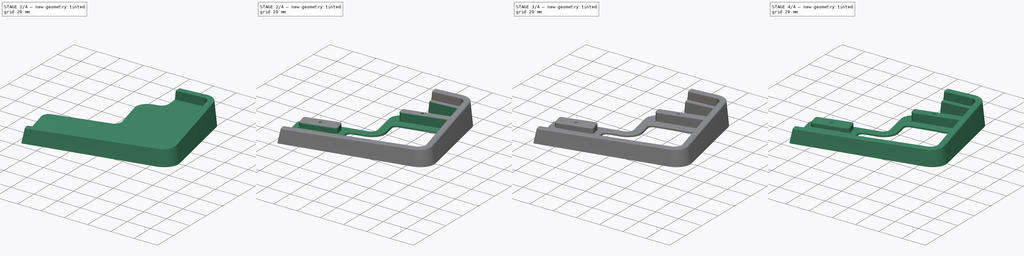
[diagram: build sequence overview — one tinted view per stage of 4, left to right]
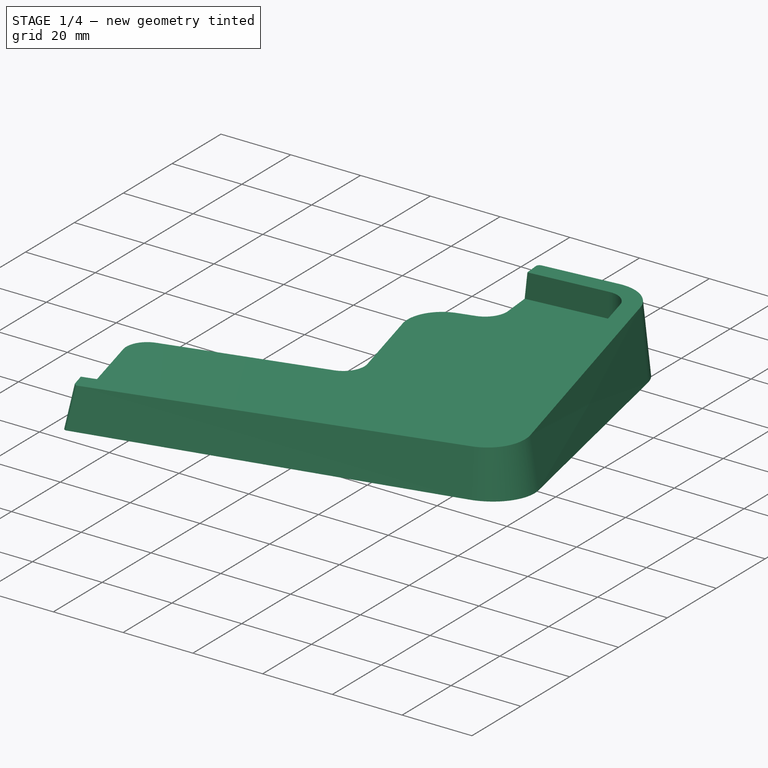
[diagram: stage 1 of 4 — iso view after this stage's code; geometry added in this stage tinted green]
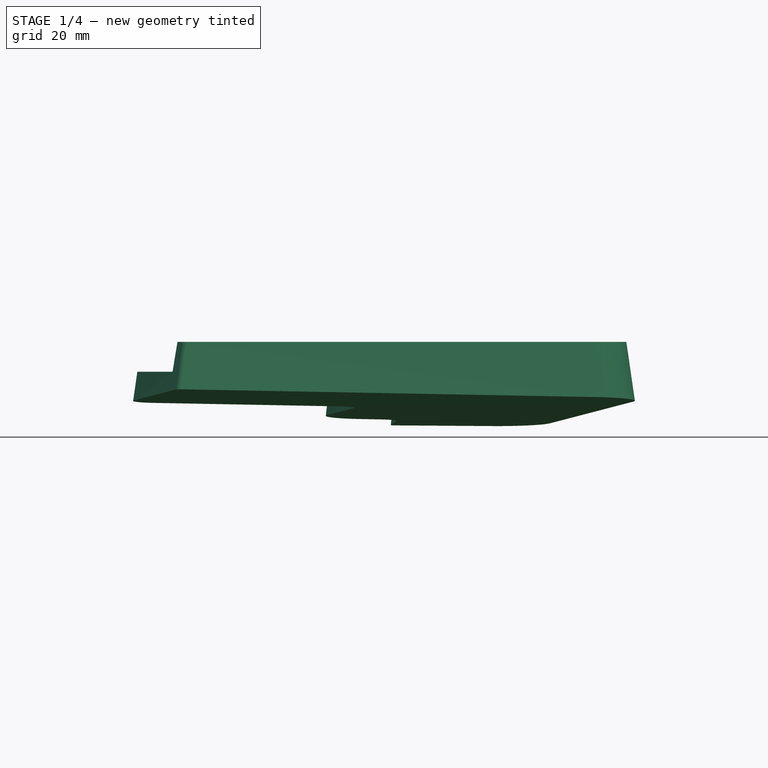
[diagram: stage 1 of 4 — front view after this stage's code; geometry added in this stage tinted green]
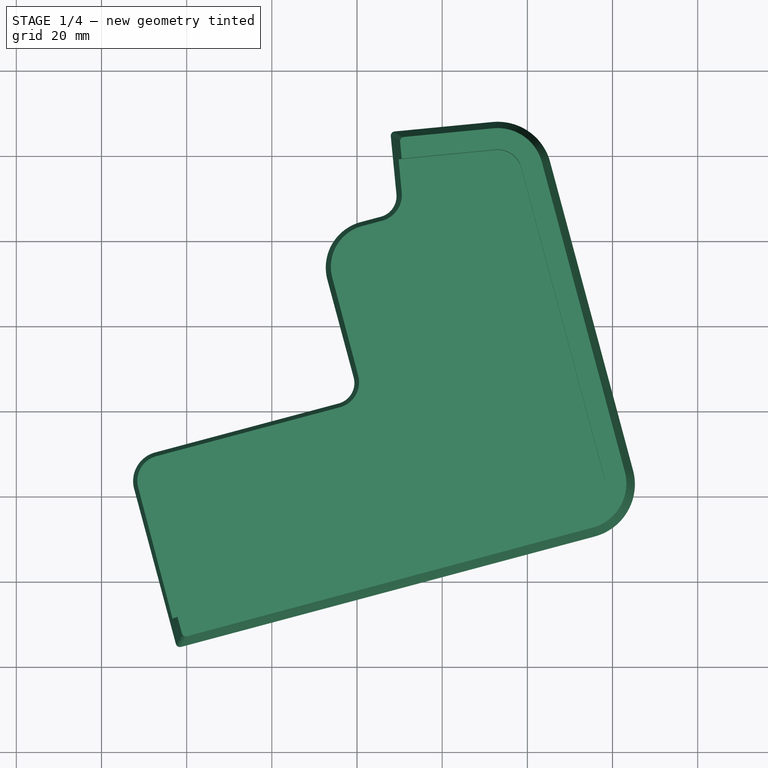
[diagram: stage 1 of 4 — top view after this stage's code; geometry added in this stage tinted green]
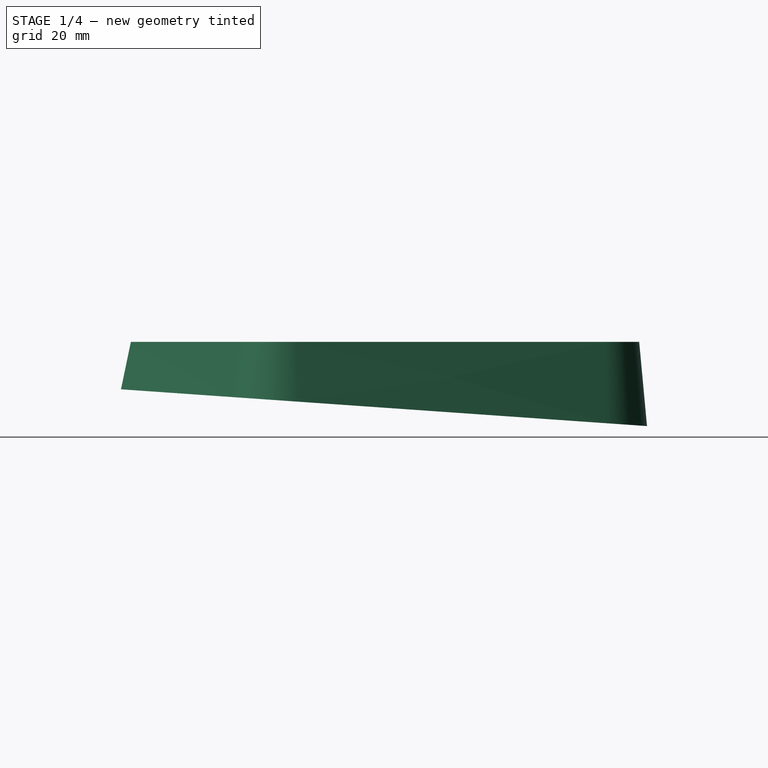
[diagram: stage 1 of 4 — right view after this stage's code; geometry added in this stage tinted green]
FCSTD DOCUMENT  (FreeCAD 0.20R)
Label: case.v4
License: All rights reserved
LicenseURL: http://en.wikipedia.org/wiki/All_rights_reserved
objects: Sketcher::SketchObject×6, PartDesign::Fillet×4, PartDesign::Pocket×3, PartDesign::AdditiveLoft×1, PartDesign::Hole×1, PartDesign::Chamfer×1, PartDesign::Body×1
note: 27 computed .brp shape members not serialized (recipe doc carries the construction recipe); baked Part::Feature solids carry a one-line shape summary decoded from their .brp

FEATURE [Sketcher::SketchObject] Sketch
  AttachmentOffset = pos=(0,0,0) rot=(1,0,0;-0.069813rad)
  FullyConstrained = false
  MapMode = 5
  Placement = pos=(0,0,0) rot=(1,0,0;6.21337rad)
  Support = -> [XY_Plane]
  sketch-geometry (16):
    g0: ArcOfCircle CenterX=113.019 CenterY=55.5108 CenterZ=0 NormalX=0 NormalY=0 NormalZ=1 AngleXU=0 Radius=12.75 StartAngle=0.261799 EndAngle=1.66745
    g1: LineSegment StartX=125.334 StartY=58.8107 StartZ=0 EndX=144.814 EndY=-13.8871 EndZ=0
    g2: ArcOfCircle CenterX=132.498 CenterY=-17.187 CenterZ=0 NormalX=0 NormalY=0 NormalZ=1 AngleXU=0 Radius=12.75 StartAngle=4.97419 EndAngle=6.54498
    g3: ArcOfCircle CenterX=83.7831 CenterY=33.8822 CenterZ=0 NormalX=0 NormalY=0 NormalZ=1 AngleXU=0 Radius=11.1169 StartAngle=1.8326 EndAngle=3.40339
    g4: LineSegment StartX=80.9058 StartY=44.6203 StartZ=0 EndX=85.573 EndY=45.8709 EndZ=0
    g5: ArcOfCircle CenterX=84.2789 CenterY=50.7005 CenterZ=0 NormalX=0 NormalY=0 NormalZ=1 AngleXU=0 Radius=5 StartAngle=4.97419 EndAngle=6.37984
    g6: ArcOfCircle CenterX=34.4268 CenterY=-16.4444 CenterZ=0 NormalX=0 NormalY=0 NormalZ=1 AngleXU=0 Radius=7 StartAngle=1.8326 EndAngle=3.40339
    g7: LineSegment StartX=75.6791 StartY=1.85599 StartZ=0 EndX=32.6151 EndY=-9.68296 EndZ=0
    g8: LineSegment StartX=79.2146 StartY=7.97971 StartZ=0 EndX=73.045 EndY=31.005 EndZ=0
    g9: ArcOfCircle CenterX=74.385 CenterY=6.68562 CenterZ=0 NormalX=0 NormalY=0 NormalZ=1 AngleXU=0 Radius=5 StartAngle=4.97419 EndAngle=6.54498
    g10: LineSegment StartX=88.8262 StartY=65.975 StartZ=0 EndX=111.789 EndY=68.2013 EndZ=0
    g11: LineSegment StartX=89.2556 StartY=51.183 StartZ=0 EndX=87.9273 EndY=64.8832 EndZ=0
    g12: ArcOfCircle CenterX=88.9227 CenterY=64.9797 CenterZ=0 NormalX=0 NormalY=0 NormalZ=1 AngleXU=0 Radius=1 StartAngle=1.66745 EndAngle=3.23824
    g13: LineSegment StartX=135.798 StartY=-29.5026 StartZ=0 EndX=38.6864 EndY=-55.5236 EndZ=0
    g14: LineSegment StartX=27.6653 StartY=-18.2562 StartZ=0 EndX=37.4617 EndY=-54.8165 EndZ=0
    g15: ArcOfCircle CenterX=38.4276 CenterY=-54.5577 CenterZ=0 NormalX=0 NormalY=0 NormalZ=1 AngleXU=0 Radius=1 StartAngle=3.40339 EndAngle=4.97419
  constraints (16):
    c: Coincident(g6,g14)
    c: Coincident(g6,g7)
    c: Coincident(g14,g15)
    c: Coincident(g13,g15)
    c: Coincident(g3,g8)
    c: Coincident(g7,g9)
    c: Coincident(g8,g9)
    c: Coincident(g3,g4)
    c: Coincident(g4,g5)
    c: Coincident(g11,g12)
    c: Coincident(g10,g12)
    c: Coincident(g5,g11)
    c: Coincident(g0,g10)
    c: Coincident(g0,g1)
    c: Coincident(g2,g13)
    c: Coincident(g1,g2)
FEATURE [Sketcher::SketchObject] Sketch001
  AttachmentOffset = pos=(0,0,15) rot=(0,0,1;0rad)
  FullyConstrained = false
  MapMode = 5
  Placement = pos=(0,0,15) rot=(0,0,1;0rad)
  Support = -> [XY_Plane]
  sketch-geometry (16):
    g0: ArcOfCircle CenterX=113.019 CenterY=55.5108 CenterZ=0 NormalX=0 NormalY=0 NormalZ=1 AngleXU=0 Radius=10.75 StartAngle=0.261799 EndAngle=1.66745
    g1: LineSegment StartX=123.403 StartY=58.2931 StartZ=0 EndX=142.882 EndY=-14.4047 EndZ=0
    g2: ArcOfCircle CenterX=132.498 CenterY=-17.187 CenterZ=0 NormalX=0 NormalY=0 NormalZ=1 AngleXU=0 Radius=10.75 StartAngle=4.97419 EndAngle=6.54498
    g3: ArcOfCircle CenterX=34.4268 CenterY=-16.4444 CenterZ=0 NormalX=0 NormalY=0 NormalZ=1 AngleXU=0 Radius=5 StartAngle=1.8326 EndAngle=3.40339
    g4: LineSegment StartX=76.1967 StartY=-0.0758621 StartZ=0 EndX=33.1327 EndY=-11.6148 EndZ=0
    g5: ArcOfCircle CenterX=74.385 CenterY=6.68562 CenterZ=0 NormalX=0 NormalY=0 NormalZ=1 AngleXU=0 Radius=7 StartAngle=4.97419 EndAngle=6.54498
    g6: LineSegment StartX=81.1464 StartY=8.49735 StartZ=0 EndX=74.9768 EndY=31.5226 EndZ=0
    g7: ArcOfCircle CenterX=83.7831 CenterY=33.8822 CenterZ=0 NormalX=0 NormalY=0 NormalZ=1 AngleXU=0 Radius=9.11691 StartAngle=1.8326 EndAngle=3.40339
    g8: LineSegment StartX=81.4235 StartY=42.6885 StartZ=0 EndX=86.0907 EndY=43.9391 EndZ=0
    g9: ArcOfCircle CenterX=84.2789 CenterY=50.7005 CenterZ=0 NormalX=0 NormalY=0 NormalZ=1 AngleXU=0 Radius=7 StartAngle=4.97419 EndAngle=6.37984
    g10: LineSegment StartX=91.0098 StartY=64.1773 StartZ=0 EndX=111.982 EndY=66.2106 EndZ=0
    g11: LineSegment StartX=91.2463 StartY=51.376 StartZ=0 EndX=90.111 EndY=63.0855 EndZ=0
    g12: ArcOfCircle CenterX=91.1063 CenterY=63.182 CenterZ=0 NormalX=0 NormalY=0 NormalZ=1 AngleXU=0 Radius=1 StartAngle=1.66745 EndAngle=3.23824
    g13: LineSegment StartX=135.281 StartY=-27.5707 StartZ=0 EndX=40.1006 EndY=-53.0741 EndZ=0
    g14: LineSegment StartX=29.5972 StartY=-17.7385 StartZ=0 EndX=38.8759 EndY=-52.367 EndZ=0
    g15: ArcOfCircle CenterX=39.8418 CenterY=-52.1082 CenterZ=0 NormalX=0 NormalY=0 NormalZ=1 AngleXU=0 Radius=1 StartAngle=3.40339 EndAngle=4.97419
  constraints (16):
    c: Coincident(g3,g14)
    c: Coincident(g3,g4)
    c: Coincident(g14,g15)
    c: Coincident(g13,g15)
    c: Coincident(g6,g7)
    c: Coincident(g4,g5)
    c: Coincident(g5,g6)
    c: Coincident(g7,g8)
    c: Coincident(g8,g9)
    c: Coincident(g11,g12)
    c: Coincident(g10,g12)
    c: Coincident(g9,g11)
    c: Coincident(g0,g10)
    c: Coincident(g0,g1)
    c: Coincident(g2,g13)
    c: Coincident(g1,g2)
FEATURE [PartDesign::AdditiveLoft] AdditiveLoft
  Closed = true
  Profile = -> Sketch001
  Ruled = true
  Sections = -> [Sketch]
FEATURE [Sketcher::SketchObject] Sketch002
  FullyConstrained = false
  MapMode = 5
  Placement = pos=(0,0,15) rot=(0,0,1;0rad)
  Support = -> [AdditiveLoft]
  sketch-geometry (7):
    g0: ArcOfCircle CenterX=113.019 CenterY=55.5108 CenterZ=0 NormalX=0 NormalY=0 NormalZ=1 AngleXU=0 Radius=5.75 StartAngle=0.261799 EndAngle=1.66745
    g1: LineSegment StartX=118.573 StartY=56.999 StartZ=0 EndX=138.052 EndY=-15.6988 EndZ=0
    g2: ArcOfCircle CenterX=132.498 CenterY=-17.187 CenterZ=0 NormalX=0 NormalY=0 NormalZ=1 AngleXU=0 Radius=5.75 StartAngle=4.97419 EndAngle=6.54498
    g3: LineSegment StartX=20.2968 StartY=-33.5339 StartZ=0 EndX=25.2143 EndY=-51.8865 EndZ=0
    g4: LineSegment StartX=133.986 StartY=-22.7411 StartZ=0 EndX=25.2143 EndY=-51.8865 EndZ=0
    g5: LineSegment StartX=20.2968 StartY=-33.5339 StartZ=0 EndX=20.2968 EndY=52.2981 EndZ=0
    g6: LineSegment StartX=20.2968 StartY=52.2981 StartZ=0 EndX=112.464 EndY=61.2339 EndZ=0
  constraints (7):
    c: Coincident(g3,g5)
    c: Coincident(g5,g6)
    c: Coincident(g3,g4)
    c: Coincident(g0,g6)
    c: Coincident(g0,g1)
    c: Coincident(g2,g4)
    c: Coincident(g1,g2)
FEATURE [PartDesign::Pocket] Pocket
  BaseFeature = -> AdditiveLoft
  Direction = (0,0,-1)
  Length = 7
  Length2 = 5
  Profile = -> Sketch002
  ReferenceAxis = -> Sketch002 [N_Axis]
  Type = 0
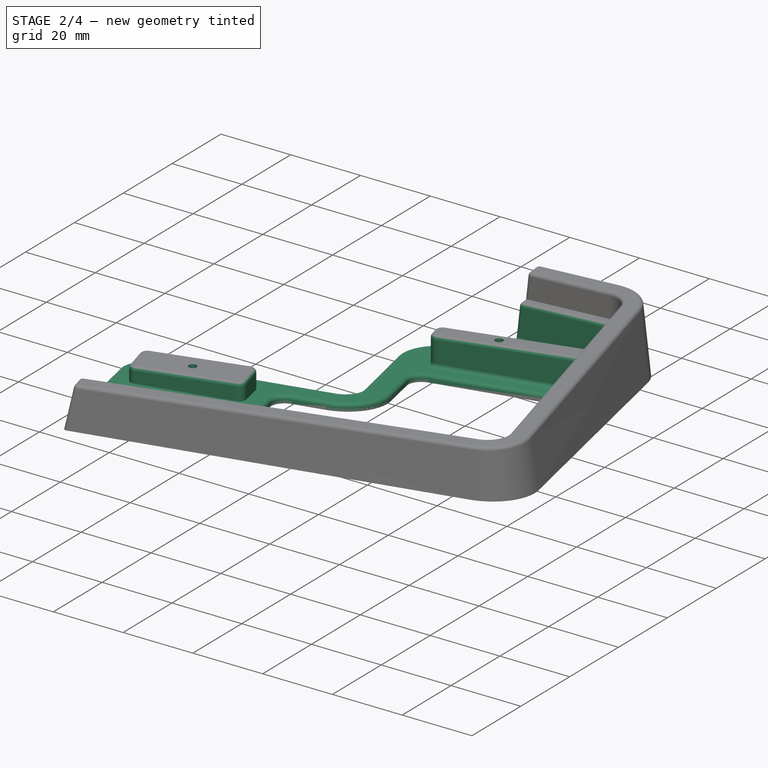
[diagram: stage 2 of 4 — iso view after this stage's code; geometry added in this stage tinted green]
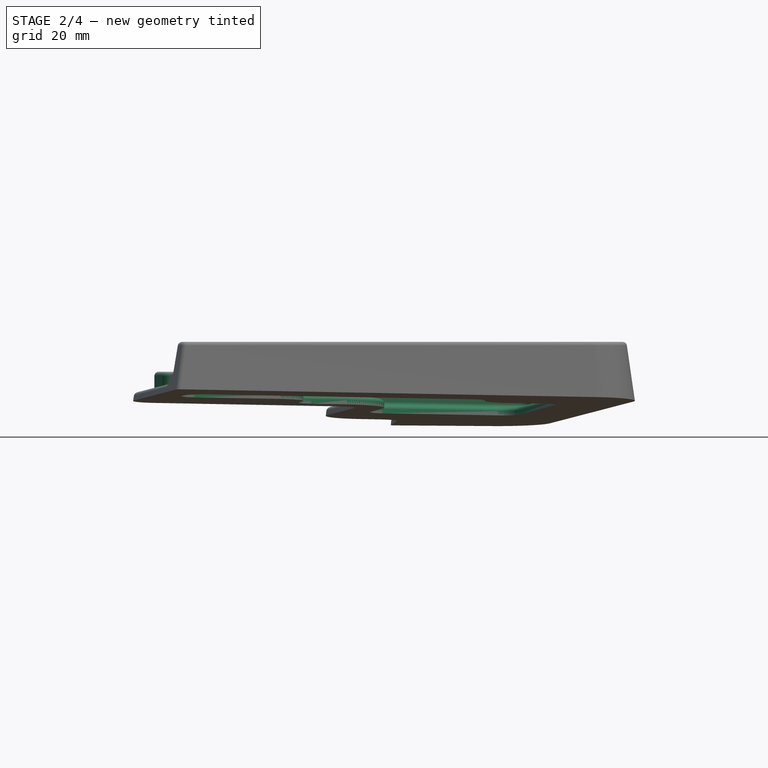
[diagram: stage 2 of 4 — front view after this stage's code; geometry added in this stage tinted green]
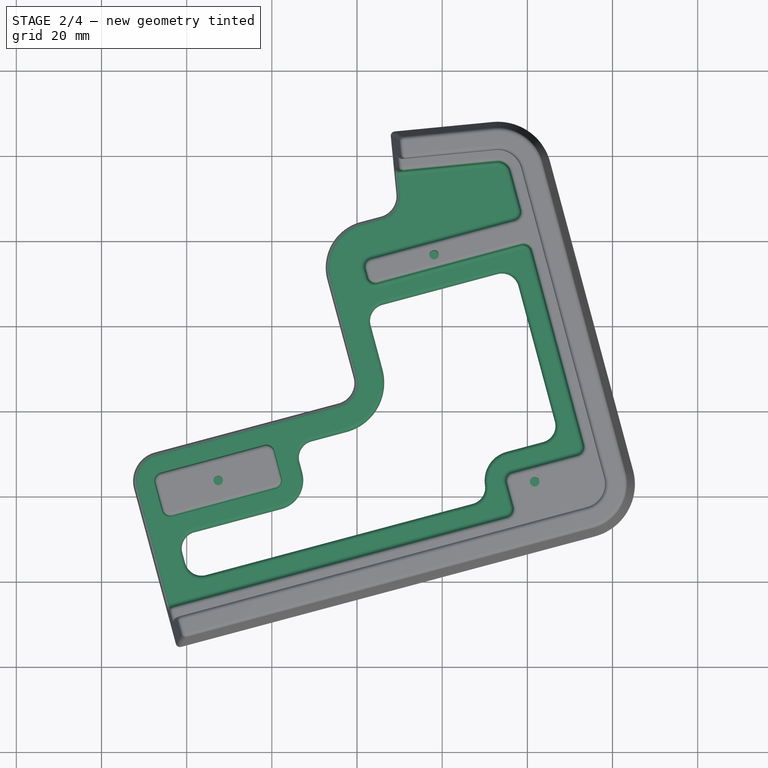
[diagram: stage 2 of 4 — top view after this stage's code; geometry added in this stage tinted green]
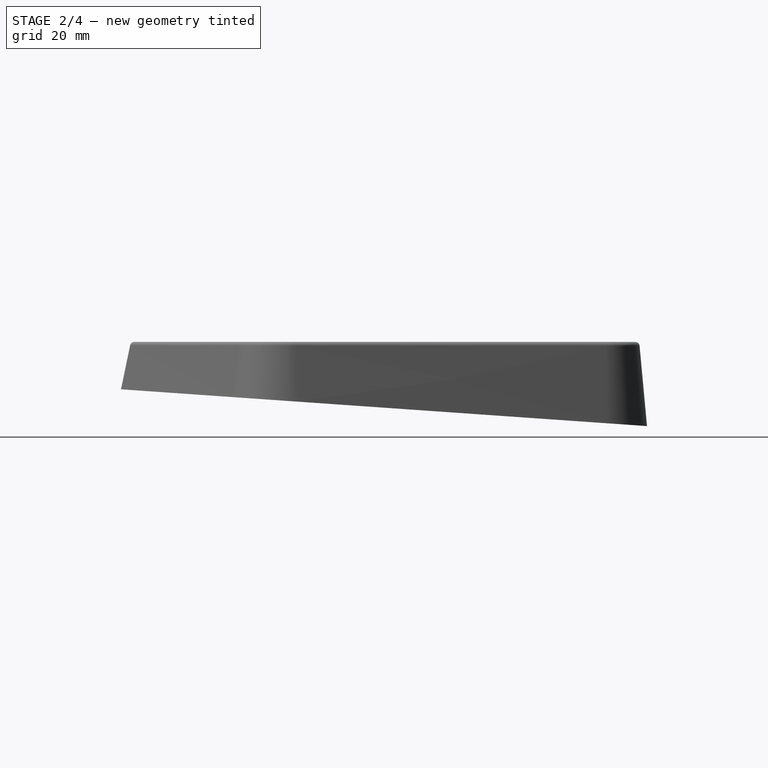
[diagram: stage 2 of 4 — right view after this stage's code; geometry added in this stage tinted green]
FEATURE [Sketcher::SketchObject] Sketch003
  FullyConstrained = false
  MapMode = 5
  Placement = pos=(0,0,8) rot=(0,0,1;0rad)
  Support = -> [Pocket]
  sketch-geometry (30):
    g0: Circle CenterX=121.71 CenterY=-16.6741 CenterZ=0 NormalX=0 NormalY=0 NormalZ=-1 AngleXU=0 Radius=1.1
    g1: Circle CenterX=47.4001 CenterY=-16.3717 CenterZ=0 NormalX=0 NormalY=0 NormalZ=-1 AngleXU=0 Radius=1.1
    g2: Circle CenterX=98.1026 CenterY=36.658 CenterZ=0 NormalX=0 NormalY=0 NormalZ=-1 AngleXU=0 Radius=1.1
    g3: ArcOfCircle CenterX=113.019 CenterY=55.5108 CenterZ=0 NormalX=0 NormalY=0 NormalZ=1 AngleXU=0 Radius=3 StartAngle=0.261799 EndAngle=1.66745
    g4: LineSegment StartX=115.127 StartY=-24.9473 StartZ=0 EndX=24.5026 EndY=-49.2302 EndZ=0
    g5: ArcOfCircle CenterX=114.61 CenterY=-23.0155 CenterZ=0 NormalX=0 NormalY=0 NormalZ=1 AngleXU=0 Radius=2 StartAngle=4.97419 EndAngle=6.54498
    g6: ArcOfCircle CenterX=58.6716 CenterY=-9.94809 CenterZ=0 NormalX=0 NormalY=0 NormalZ=1 AngleXU=0 Radius=2 StartAngle=0.261799 EndAngle=1.8326
    g7: LineSegment StartX=62.3052 StartY=-15.7814 StartZ=0 EndX=60.6034 EndY=-9.43045 EndZ=0
    g8: ArcOfCircle CenterX=60.3733 CenterY=-16.299 CenterZ=0 NormalX=0 NormalY=0 NormalZ=1 AngleXU=0 Radius=2 StartAngle=4.97419 EndAngle=6.54498
    g9: LineSegment StartX=60.8909 StartY=-18.2309 StartZ=0 EndX=36.6462 EndY=-24.7273 EndZ=0
    g10: ArcOfCircle CenterX=36.1286 CenterY=-22.7954 CenterZ=0 NormalX=0 NormalY=0 NormalZ=1 AngleXU=0 Radius=2 StartAngle=3.40339 EndAngle=4.97419
    g11: LineSegment StartX=32.495 StartY=-16.9621 StartZ=0 EndX=34.1967 EndY=-23.313 EndZ=0
    g12: LineSegment StartX=58.1539 StartY=-8.01623 StartZ=0 EndX=33.9092 EndY=-14.5126 EndZ=0
    g13: ArcOfCircle CenterX=34.4268 CenterY=-16.4444 CenterZ=0 NormalX=0 NormalY=0 NormalZ=1 AngleXU=0 Radius=2 StartAngle=1.8326 EndAngle=3.40339
    g14: ArcOfCircle CenterX=83.7831 CenterY=33.8822 CenterZ=0 NormalX=0 NormalY=0 NormalZ=1 AngleXU=0 Radius=2 StartAngle=1.8326 EndAngle=3.40339
    g15: LineSegment StartX=82.3818 StartY=31.3845 StartZ=0 EndX=81.8512 EndY=33.3646 EndZ=0
    g16: ArcOfCircle CenterX=84.3137 CenterY=31.9021 CenterZ=0 NormalX=0 NormalY=0 NormalZ=1 AngleXU=0 Radius=2 StartAngle=3.40339 EndAngle=4.97419
    g17: ArcOfCircle CenterX=131.19 CenterY=-8.44011 CenterZ=0 NormalX=0 NormalY=0 NormalZ=1 AngleXU=0 Radius=2 StartAngle=4.97419 EndAngle=6.54498
    g18: LineSegment StartX=116.542 StartY=-22.4979 StartZ=0 EndX=115.044 EndY=-16.9076 EndZ=0
    g19: LineSegment StartX=116.458 StartY=-14.4581 StartZ=0 EndX=131.707 EndY=-10.372 EndZ=0
    g20: ArcOfCircle CenterX=116.975 CenterY=-16.3899 CenterZ=0 NormalX=0 NormalY=0 NormalZ=1 AngleXU=0 Radius=2 StartAngle=1.8326 EndAngle=3.40339
    g21: LineSegment StartX=83.2655 StartY=35.8141 StartZ=0 EndX=116.916 EndY=44.8307 EndZ=0
    g22: LineSegment StartX=115.917 StartY=56.2872 StartZ=0 EndX=118.33 EndY=47.2802 EndZ=0
    g23: ArcOfCircle CenterX=116.398 CenterY=46.7626 CenterZ=0 NormalX=0 NormalY=0 NormalZ=1 AngleXU=0 Radius=2 StartAngle=4.97419 EndAngle=6.54498
    g24: LineSegment StartX=118.482 StartY=38.9868 StartZ=0 EndX=84.8313 EndY=29.9702 EndZ=0
    g25: LineSegment StartX=120.931 StartY=37.5726 StartZ=0 EndX=133.122 EndY=-7.92247 EndZ=0
    g26: ArcOfCircle CenterX=118.999 CenterY=37.055 CenterZ=0 NormalX=0 NormalY=0 NormalZ=1 AngleXU=0 Radius=2 StartAngle=0.261799 EndAngle=1.8326
    g27: LineSegment StartX=24.5026 StartY=-49.2302 StartZ=0 EndX=20.2968 EndY=-33.5339 EndZ=0
    g28: LineSegment StartX=20.2968 StartY=-33.5339 StartZ=0 EndX=20.2968 EndY=49.5352 EndZ=0
    g29: LineSegment StartX=20.2968 StartY=49.5352 StartZ=0 EndX=112.729 EndY=58.4968 EndZ=0
  constraints (27):
    c: Coincident(g27,g28)
    c: Coincident(g28,g29)
    c: Coincident(g4,g27)
    c: Coincident(g11,g13)
    c: Coincident(g12,g13)
    c: Coincident(g10,g11)
    c: Coincident(g9,g10)
    c: Coincident(g6,g12)
    c: Coincident(g6,g7)
    c: Coincident(g8,g9)
    c: Coincident(g7,g8)
    c: Coincident(g14,g15)
    c: Coincident(g15,g16)
    c: Coincident(g14,g21)
    c: Coincident(g16,g24)
    c: Coincident(g3,g29)
    c: Coincident(g18,g20)
    c: Coincident(g4,g5)
    c: Coincident(g3,g22)
    c: Coincident(g19,g20)
    c: Coincident(g5,g18)
    c: Coincident(g21,g23)
    c: Coincident(g22,g23)
    c: Coincident(g24,g26)
    c: Coincident(g25,g26)
    c: Coincident(g17,g19)
    c: Coincident(g17,g25)
FEATURE [PartDesign::Pocket] Pocket001
  BaseFeature = -> Pocket
  Direction = (0,0,-1)
  Length = 0
  Length2 = 5
  Offset = -2
  Profile = -> Sketch003
  ReferenceAxis = -> Sketch003 [N_Axis]
  Type = 3
  UpToFace = -> Pocket [Face16]
FEATURE [Sketcher::SketchObject] Sketch004
  FullyConstrained = false
  MapMode = 5
  Placement = pos=(0,0.139173,1.99027) rot=(-1,0,0;0.069813rad)
  Support = -> [Pocket001]
  sketch-geometry (19):
    g0: ArcOfCircle CenterX=60.3733 CenterY=-16.299 CenterZ=0 NormalX=0 NormalY=0 NormalZ=1 AngleXU=0 Radius=7 StartAngle=4.97419 EndAngle=6.54498
    g1: ArcOfCircle CenterX=74.385 CenterY=6.68562 CenterZ=0 NormalX=0 NormalY=0 NormalZ=1 AngleXU=0 Radius=12 StartAngle=4.97419 EndAngle=6.54498
    g2: ArcOfCircle CenterX=116.975 CenterY=-16.3899 CenterZ=0 NormalX=0 NormalY=0 NormalZ=1 AngleXU=0 Radius=7 StartAngle=1.8326 EndAngle=3.29294
    g3: ArcOfCircle CenterX=106.101 CenterY=-18.0484 CenterZ=0 NormalX=0 NormalY=0 NormalZ=1 AngleXU=0 Radius=4 StartAngle=4.97419 EndAngle=6.43453
    g4: LineSegment StartX=115.164 StartY=-9.62844 StartZ=0 EndX=123.652 EndY=-7.35407 EndZ=0
    g5: ArcOfCircle CenterX=122.617 CenterY=-3.49036 CenterZ=0 NormalX=0 NormalY=0 NormalZ=1 AngleXU=0 Radius=4 StartAngle=4.97419 EndAngle=6.54498
    g6: LineSegment StartX=117.913 StartY=29.5171 StartZ=0 EndX=126.48 EndY=-2.45509 EndZ=0
    g7: ArcOfCircle CenterX=114.05 CenterY=28.4818 CenterZ=0 NormalX=0 NormalY=0 NormalZ=1 AngleXU=0 Radius=4 StartAngle=0.261799 EndAngle=1.8326
    g8: LineSegment StartX=113.014 StartY=32.3455 StartZ=0 EndX=86.0125 EndY=25.1104 EndZ=0
    g9: LineSegment StartX=85.9761 StartY=9.79145 StartZ=0 EndX=83.1841 EndY=20.2114 EndZ=0
    g10: ArcOfCircle CenterX=87.0478 CenterY=21.2466 CenterZ=0 NormalX=0 NormalY=0 NormalZ=1 AngleXU=0 Radius=4 StartAngle=1.8326 EndAngle=3.40339
    g11: LineSegment StartX=67.1348 StartY=-14.4873 StartZ=0 EndX=66.4683 EndY=-12.0001 EndZ=0
    g12: LineSegment StartX=77.4908 StartY=-4.90549 StartZ=0 EndX=69.2968 EndY=-7.10108 EndZ=0
    g13: ArcOfCircle CenterX=70.332 CenterY=-10.9648 CenterZ=0 NormalX=0 NormalY=0 NormalZ=1 AngleXU=0 Radius=4 StartAngle=1.8326 EndAngle=3.40339
    g14: LineSegment StartX=62.185 StartY=-23.0605 StartZ=0 EndX=41.804 EndY=-28.5216 EndZ=0
    g15: ArcOfCircle CenterX=42.8393 CenterY=-32.3853 CenterZ=0 NormalX=0 NormalY=0 NormalZ=1 AngleXU=0 Radius=4 StartAngle=1.8326 EndAngle=3.40339
    g16: LineSegment StartX=107.137 StartY=-21.9121 StartZ=0 EndX=44.5281 EndY=-38.688 EndZ=0
    g17: LineSegment StartX=38.9756 StartY=-33.4206 StartZ=0 EndX=39.6291 EndY=-35.8596 EndZ=0
    g18: ArcOfCircle CenterX=43.4928 CenterY=-34.8243 CenterZ=0 NormalX=0 NormalY=0 NormalZ=1 AngleXU=0 Radius=4 StartAngle=3.40339 EndAngle=4.97419
  constraints (19):
    c: Coincident(g15,g17)
    c: Coincident(g17,g18)
    c: Coincident(g14,g15)
    c: Coincident(g16,g18)
    c: Coincident(g0,g14)
    c: Coincident(g11,g13)
    c: Coincident(g0,g11)
    c: Coincident(g12,g13)
    c: Coincident(g1,g12)
    c: Coincident(g9,g10)
    c: Coincident(g1,g9)
    c: Coincident(g8,g10)
    c: Coincident(g3,g16)
    c: Coincident(g2,g3)
    c: Coincident(g7,g8)
    c: Coincident(g2,g4)
    c: Coincident(g6,g7)
    c: Coincident(g4,g5)
    c: Coincident(g5,g6)
FEATURE [PartDesign::Pocket] Pocket002
  BaseFeature = -> Pocket001
  Direction = (0,-0.0697565,-0.997564)
  Length = 5
  Length2 = 5
  Profile = -> Sketch004
  ReferenceAxis = -> Sketch004 [N_Axis]
  Type = 1
FEATURE [PartDesign::Fillet] Fillet
  Base = -> Pocket002 [Edge83,Edge41,Edge35,Edge40,Edge39,Edge9,Edge8,Edge20,Edge21,Edge22,Edge125,Edge96,Edge197]
  BaseFeature = -> Pocket002
  Radius = 1
  SupportTransform = false
  UseAllEdges = false
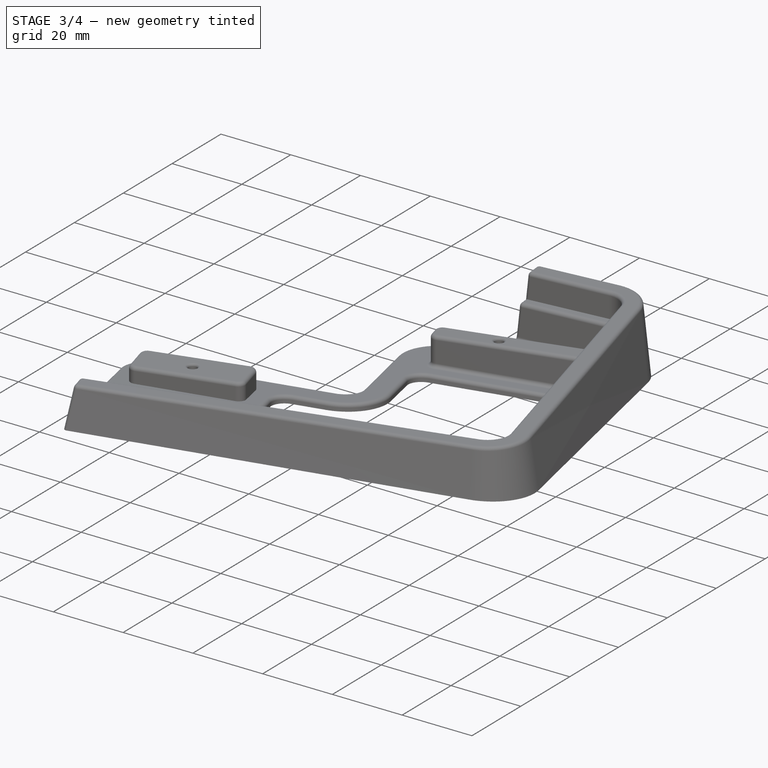
[diagram: stage 3 of 4 — iso view after this stage's code; geometry added in this stage tinted green]
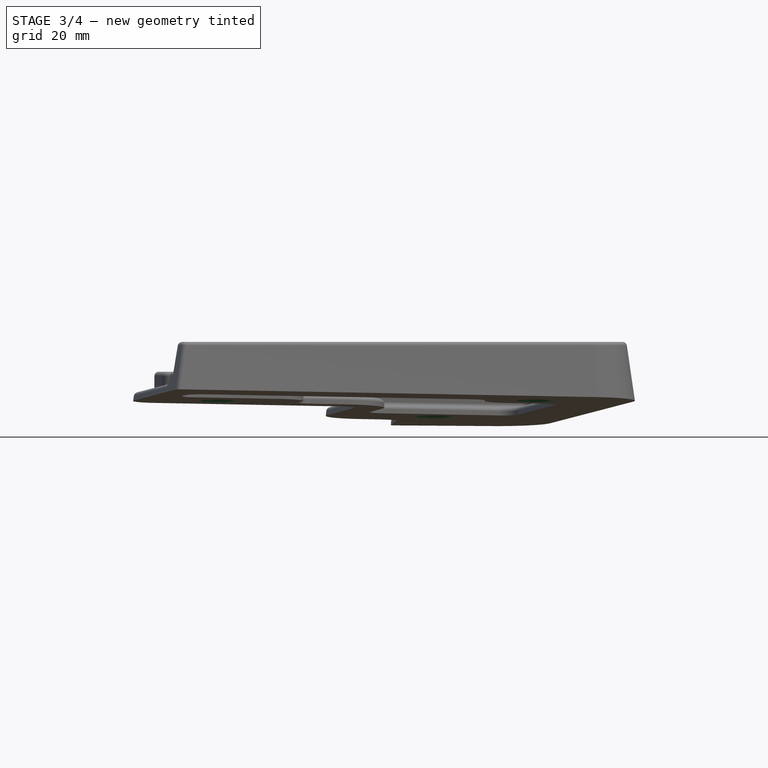
[diagram: stage 3 of 4 — front view after this stage's code; geometry added in this stage tinted green]
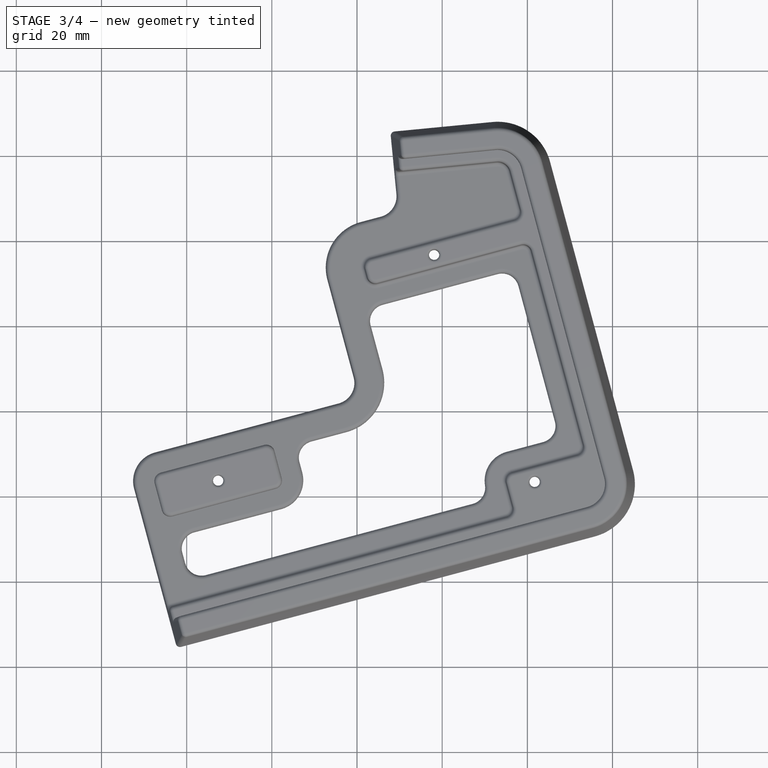
[diagram: stage 3 of 4 — top view after this stage's code; geometry added in this stage tinted green]
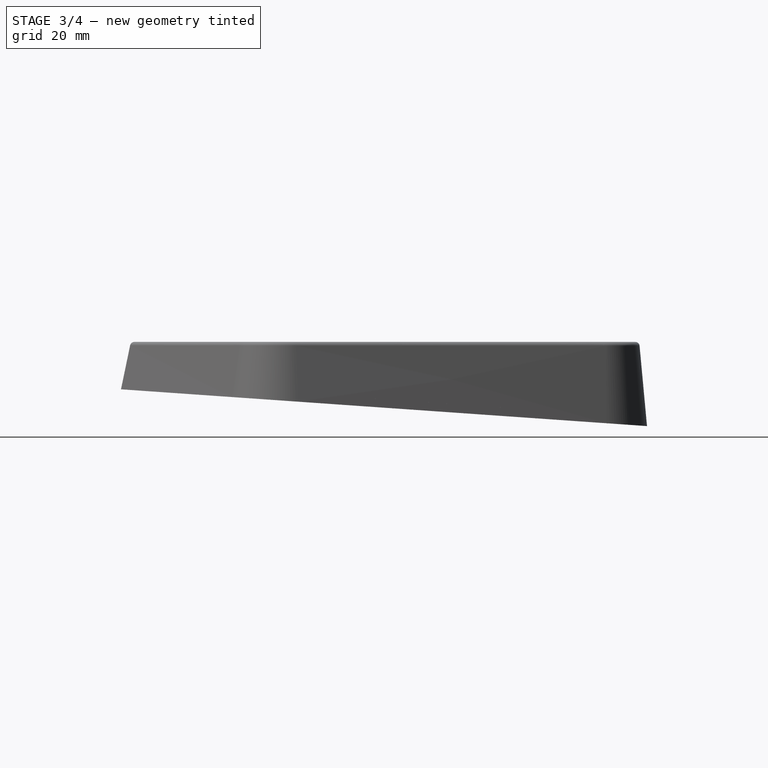
[diagram: stage 3 of 4 — right view after this stage's code; geometry added in this stage tinted green]
FEATURE [Sketcher::SketchObject] Sketch005
  ExternalGeometry = -> [Sketch003]
  FullyConstrained = true
  MapMode = 5
  Placement = pos=(0,0,8) rot=(0,0,1;0rad)
  Support = -> [Pocket]
  sketch-geometry (3):
    g0: Circle CenterX=98.1026 CenterY=36.658 CenterZ=0 NormalX=0 NormalY=0 NormalZ=1 AngleXU=0 Radius=1
    g1: Circle CenterX=121.71 CenterY=-16.6741 CenterZ=0 NormalX=0 NormalY=0 NormalZ=1 AngleXU=0 Radius=1
    g2: Circle CenterX=47.4001 CenterY=-16.3717 CenterZ=0 NormalX=0 NormalY=0 NormalZ=1 AngleXU=0 Radius=1
  constraints (6):
    c: Coincident(g0,g-3)
    c: Coincident(g1,g-4)
    c: Coincident(g2,g-5)
    c: Equal(g0,g1)
    c: Equal(g1,g2)
    c: Diameter(g0) = 2
FEATURE [PartDesign::Hole] Hole
  BaseFeature = -> Fillet
  CustomThreadClearance = 0
  Depth = 25
  DepthType = 0
  Diameter = 2.42
  DrillForDepth = false
  DrillPoint = 1
  DrillPointAngle = 118
  HoleCutCountersinkAngle = 90
  HoleCutCustomValues = false
  HoleCutDepth = 0
  HoleCutDiameter = 6.1
  HoleCutType = 0
  ModelThread = false
  Profile = -> Sketch005
  Tapered = false
  TaperedAngle = 90
  ThreadClass = 0
  ThreadDepth = 25
  ThreadDepthType = 0
  ThreadDirection = 0
  ThreadFit = 0
  ThreadSize = 7
  ThreadType = 1
  Threaded = false
  UseCustomThreadClearance = false
FEATURE [PartDesign::Fillet] Fillet001
  Base = -> Hole [Edge150,Edge151,Edge213]
  BaseFeature = -> Hole
  Radius = 0.65
  SupportTransform = false
  UseAllEdges = false
FEATURE [PartDesign::Chamfer] Chamfer
  Angle = 45
  Base = -> Fillet001 [Edge160,Edge194,Edge90]
  BaseFeature = -> Fillet001
  ChamferType = 0
  FlipDirection = false
  Size = 3
  Size2 = 1
  SupportTransform = false
  UseAllEdges = false
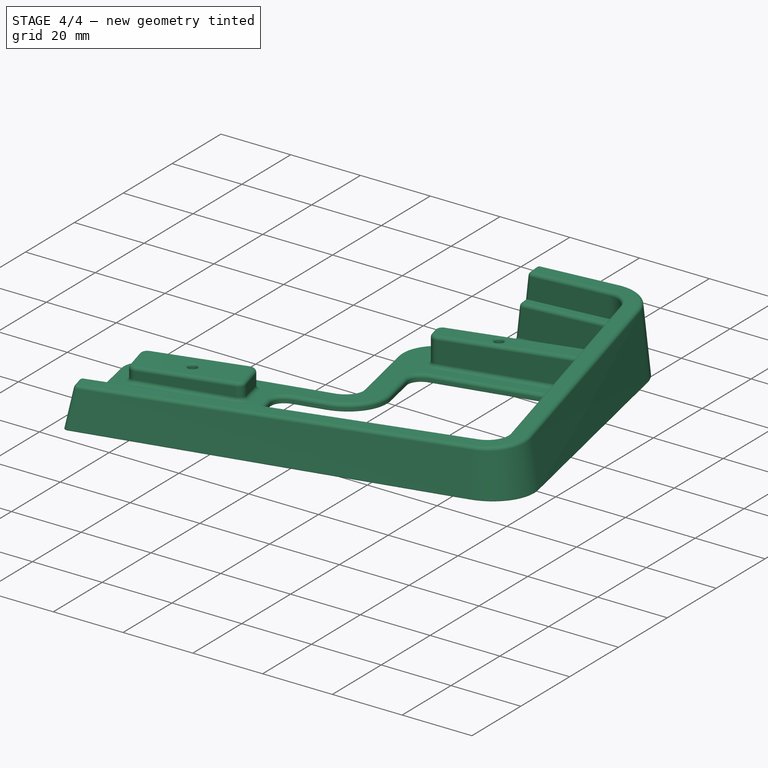
[diagram: stage 4 of 4 — iso view after this stage's code; geometry added in this stage tinted green]
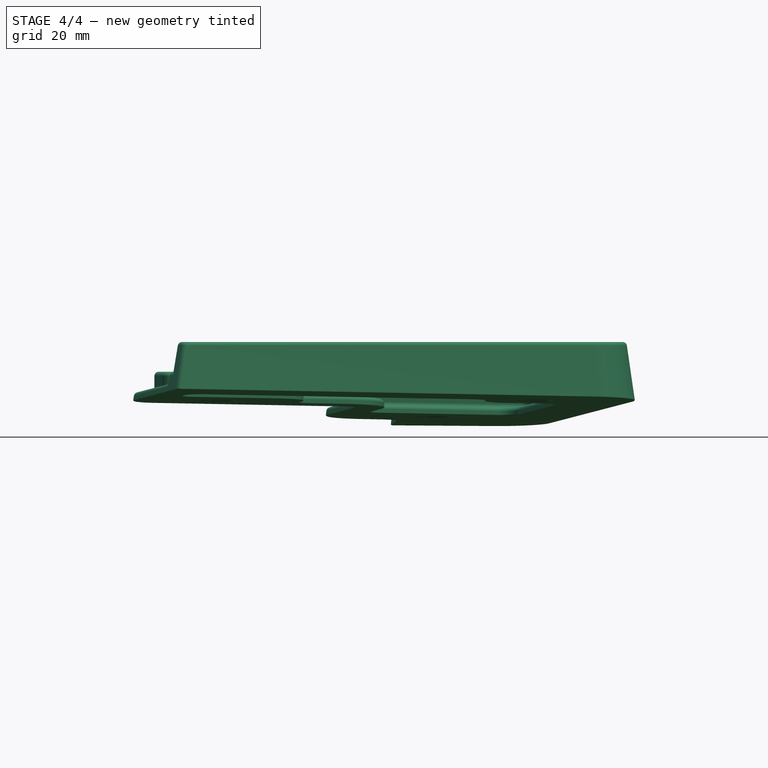
[diagram: stage 4 of 4 — front view after this stage's code; geometry added in this stage tinted green]
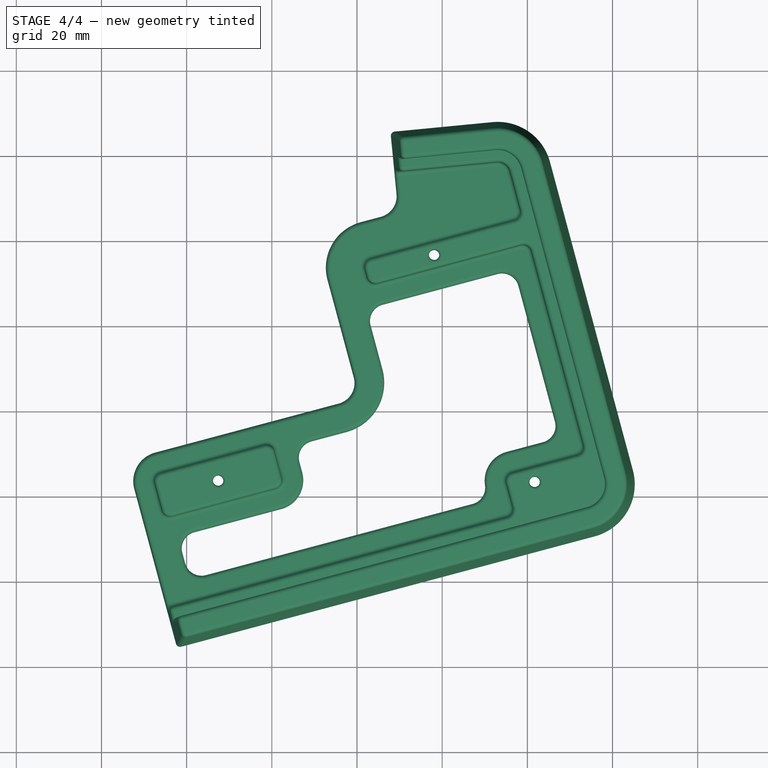
[diagram: stage 4 of 4 — top view after this stage's code; geometry added in this stage tinted green]
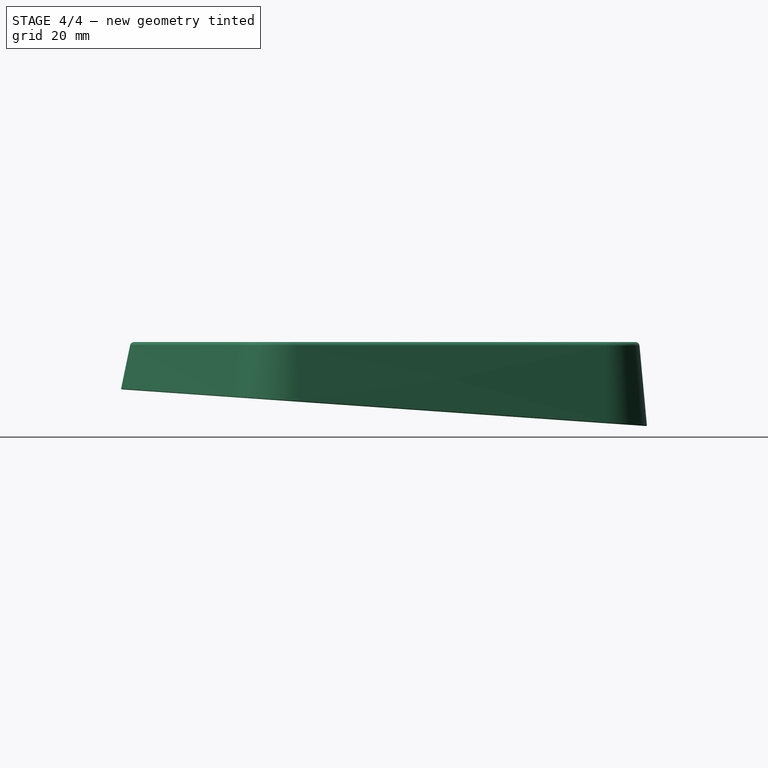
[diagram: stage 4 of 4 — right view after this stage's code; geometry added in this stage tinted green]
FEATURE [PartDesign::Fillet] Fillet002
  Base = -> Chamfer [Face4]
  BaseFeature = -> Chamfer
  Radius = 0.2
  SupportTransform = false
  UseAllEdges = false
FEATURE [PartDesign::Fillet] Fillet003
  Base = -> Fillet002 [Edge440]
  BaseFeature = -> Fillet002
  Radius = 1
  SupportTransform = false
  UseAllEdges = false
FEATURE [PartDesign::Body] Body
  Group = -> [Sketch,Sketch001,AdditiveLoft,Sketch002,Pocket,Sketch003,Pocket001,Sketch004,Pocket002,Fillet,Sketch005,Hole,Fillet001,Chamfer,Fillet002,Fillet003]
  Origin = -> Origin
  Placement = pos=(0,0,0) rot=(1,0,0;0.069813rad)
  Tip = -> Fillet003
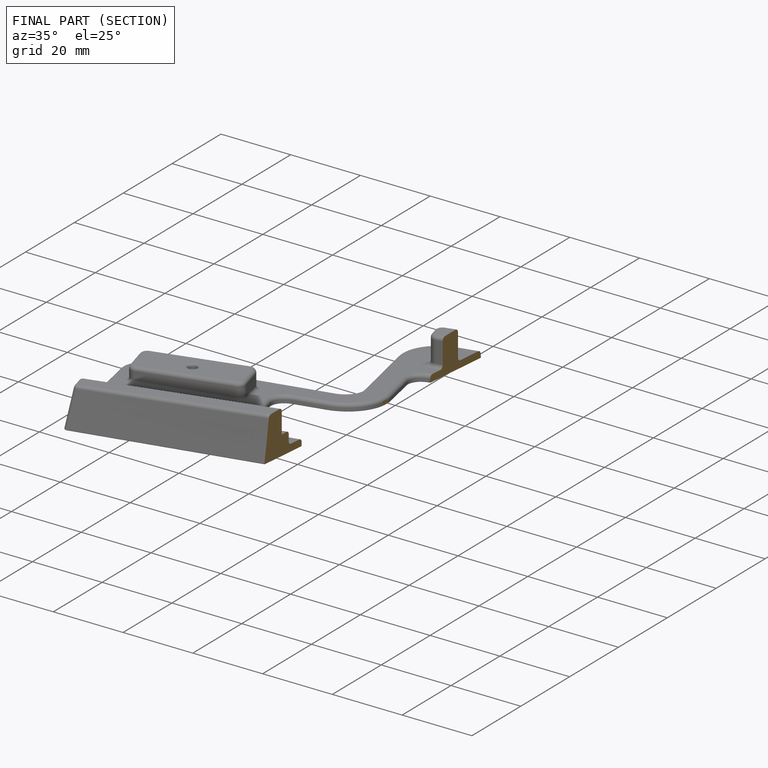
[diagram: finished part — half-section view (interior)]
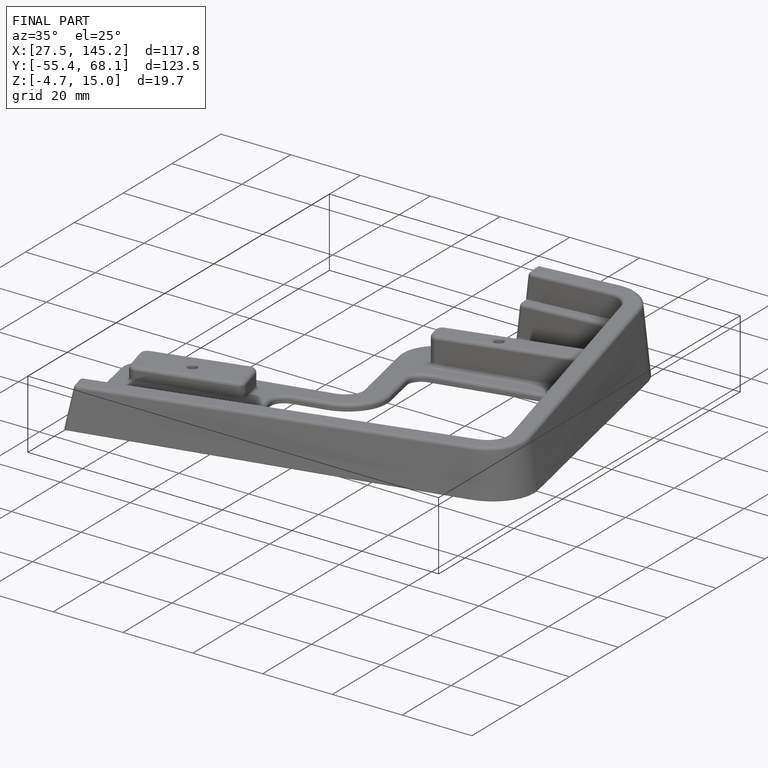
[diagram: finished part — iso view with bounding-box wireframe]
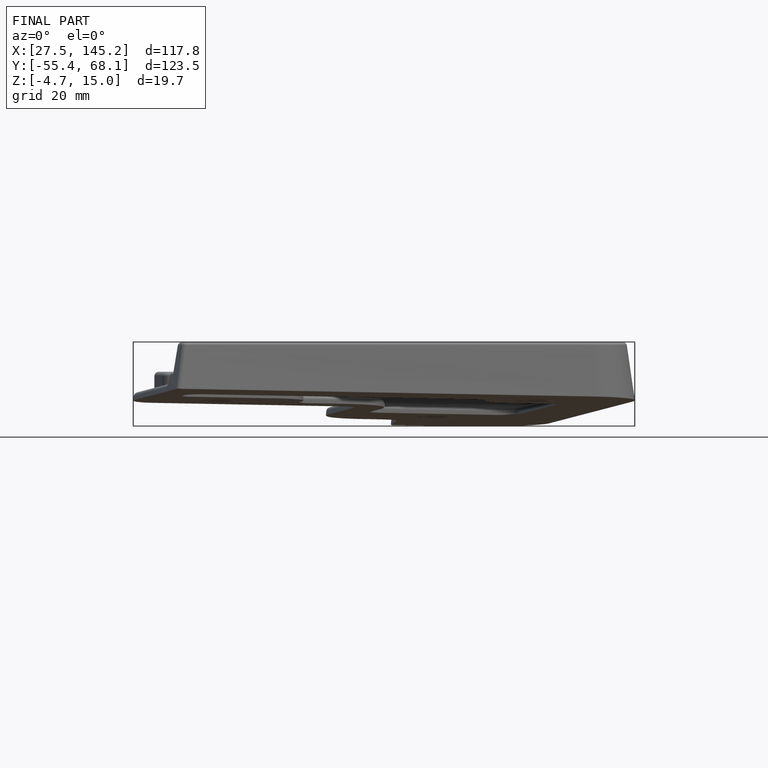
[diagram: finished part — front view with bounding-box wireframe]
